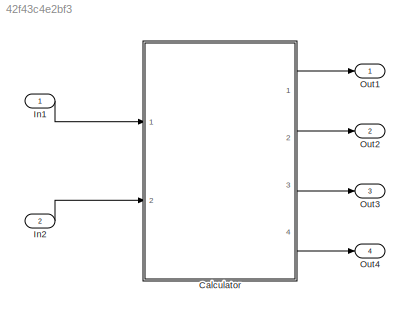
MODEL slx_42f43c4e2bf3
KIND model
CONFIG AbsTol = auto
CONFIG EnableMultiTasking = off
CONFIG FixedStep = auto
CONFIG MaxStep = auto
CONFIG MinStep = auto
CONFIG RelTol = 1e-3
CONFIG SampleTimeConstraint = Unconstrained
CONFIG Solver = FixedStepDiscrete
CONFIG SolverName = FixedStepDiscrete
CONFIG StartTime = 0.0
CONFIG StopTime = 10.0
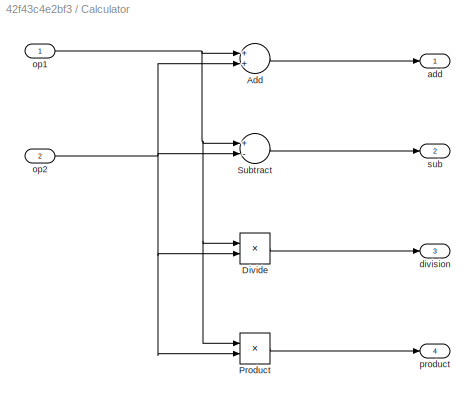
BLOCK [SubSystem] Calculator
  Ports = [2, 4]
  RequestExecContextInheritance = off
  Variant = off
BLOCK [Sum] Calculator/Add
  InputSameDT = off
  OutDataTypeStr = Inherit: Inherit via internal rule
  Ports = [2, 1]
  SaturateOnIntegerOverflow = off
BLOCK [Product] Calculator/Divide
  InputSameDT = off
  Inputs = */
  OutDataTypeStr = Inherit: Inherit via internal rule
  Ports = [2, 1]
  RndMeth = Floor
  SaturateOnIntegerOverflow = off
BLOCK [Product] Calculator/Product
  InputSameDT = off
  OutDataTypeStr = Inherit: Inherit via internal rule
  Ports = [2, 1]
  RndMeth = Floor
  SaturateOnIntegerOverflow = off
BLOCK [Sum] Calculator/Subtract
  InputSameDT = off
  Inputs = +-
  OutDataTypeStr = Inherit: Inherit via internal rule
  Ports = [2, 1]
  SaturateOnIntegerOverflow = off
BLOCK [Outport] Calculator/add
  IconDisplay = Port number
BLOCK [Outport] Calculator/division
  IconDisplay = Port number
  Port = 3
BLOCK [Inport] Calculator/op1
  IconDisplay = Port number
BLOCK [Inport] Calculator/op2
  IconDisplay = Port number
  Port = 2
BLOCK [Outport] Calculator/product
  IconDisplay = Port number
  Port = 4
BLOCK [Outport] Calculator/sub
  IconDisplay = Port number
  Port = 2
BLOCK [Inport] In1
  IconDisplay = Port number
BLOCK [Inport] In2
  IconDisplay = Port number
  Port = 2
BLOCK [Outport] Out1
  IconDisplay = Port number
BLOCK [Outport] Out2
  IconDisplay = Port number
  Port = 2
BLOCK [Outport] Out3
  IconDisplay = Port number
  Port = 3
BLOCK [Outport] Out4
  IconDisplay = Port number
  Port = 4
LINE Calculator/Add:1 -> Calculator/add:1
LINE Calculator/Divide:1 -> Calculator/division:1
LINE Calculator/Product:1 -> Calculator/product:1
LINE Calculator/Subtract:1 -> Calculator/sub:1
NET Calculator/op1:1 -> Calculator/Add:1, Calculator/Divide:1, Calculator/Product:1, Calculator/Subtract:1
NET Calculator/op2:1 -> Calculator/Add:2, Calculator/Divide:2, Calculator/Product:2, Calculator/Subtract:2
LINE Calculator:1 -> Out1:1
LINE Calculator:2 -> Out2:1
LINE Calculator:3 -> Out3:1
LINE Calculator:4 -> Out4:1
LINE In1:1 -> Calculator:1
LINE In2:1 -> Calculator:2
note: NET lines group one-source signal fan-out (src -> all destinations, sorted); 1:1 wires keep LINE
